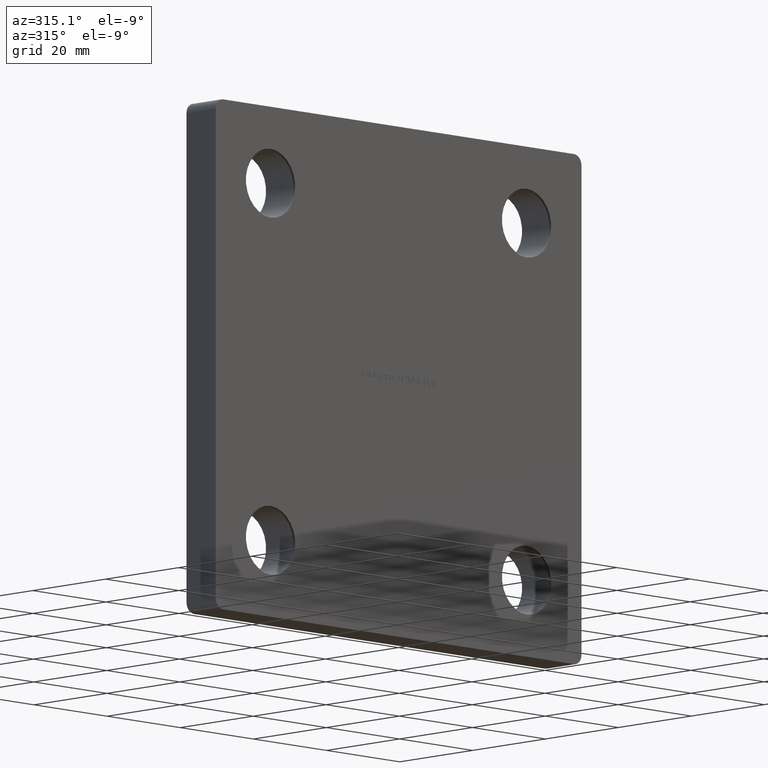
[diagram: clean part render]
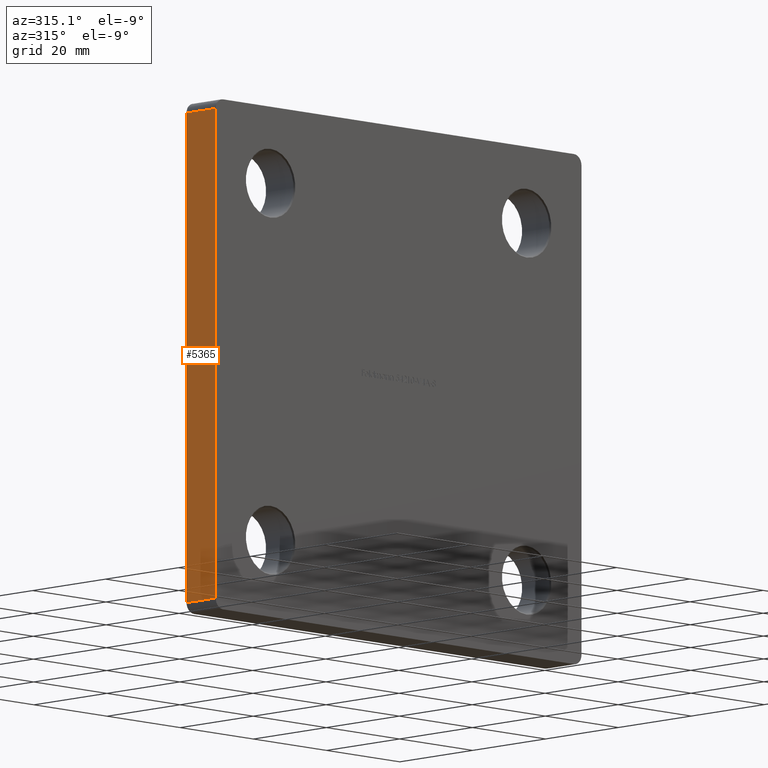
[diagram: same view with one face highlighted and labeled with its STEP entity id]
A machine part, auxiliary view. The second image highlights one B-rep face of the part: STEP entity #5365.
In plain terms, the highlighted planar face has unit normal (1, 0, -0).
Its self-contained STEP definition (entity closure, byte-faithful):
#1205 = ORIENTED_EDGE ( 'NONE', *, *, #4740, .T. ) ;
#1689 = CARTESIAN_POINT ( 'NONE',  ( -50.00000000000000000, 8.000000000000000000, -49.99999999999998579 ) ) ;
#2146 = LINE ( 'NONE', #4055, #11560 ) ;
#2860 = EDGE_CURVE ( 'NONE', #7071, #6628, #2146, .T. ) ;
#3510 = VERTEX_POINT ( 'NONE', #10834 ) ;
#3525 = FACE_OUTER_BOUND ( 'NONE', #11082, .T. ) ;
#3636 = VECTOR ( 'NONE', #10868, 1000.000000000000000 ) ;
#3858 = PLANE ( 'NONE',  #10814 ) ;
#4055 = CARTESIAN_POINT ( 'NONE',  ( -50.00000000000000000, 8.000000000000000000, -47.99999999999998579 ) ) ;
#4648 = VECTOR ( 'NONE', #7481, 1000.000000000000000 ) ;
#4740 = EDGE_CURVE ( 'NONE', #3510, #9297, #9441, .T. ) ;
#4883 = DIRECTION ( 'NONE',  ( 1.000000000000000000, 0.000000000000000000, -1.387778780781445676E-16 ) ) ;
#4923 = VECTOR ( 'NONE', #8732, 1000.000000000000000 ) ;
#5365 = ADVANCED_FACE ( 'NONE', ( #3525 ), #3858, .F. ) ;
#5447 = CARTESIAN_POINT ( 'NONE',  ( -50.00000000000000000, 0.000000000000000000, -47.99999999999998579 ) ) ;
#6156 = CARTESIAN_POINT ( 'NONE',  ( -49.99999999999998579, 8.000000000000000000, 48.00000000000001421 ) ) ;
#6628 = VERTEX_POINT ( 'NONE', #5447 ) ;
#7032 = ORIENTED_EDGE ( 'NONE', *, *, #8712, .T. ) ;
#7071 = VERTEX_POINT ( 'NONE', #11353 ) ;
#7481 = DIRECTION ( 'NONE',  ( -0.000000000000000000, 1.000000000000000000, -0.000000000000000000 ) ) ;
#7629 = LINE ( 'NONE', #7792, #4923 ) ;
#7661 = CARTESIAN_POINT ( 'NONE',  ( -49.99999999999998579, 8.000000000000000000, 48.00000000000001421 ) ) ;
#7792 = CARTESIAN_POINT ( 'NONE',  ( -50.00000000000000000, 0.000000000000000000, -49.99999999999998579 ) ) ;
#7880 = CARTESIAN_POINT ( 'NONE',  ( -50.00000000000000000, 8.000000000000000000, -49.99999999999998579 ) ) ;
#7960 = EDGE_CURVE ( 'NONE', #7071, #9297, #8763, .T. ) ;
#8712 = EDGE_CURVE ( 'NONE', #6628, #3510, #7629, .T. ) ;
#8732 = DIRECTION ( 'NONE',  ( 1.387778780781445676E-16, 0.000000000000000000, 1.000000000000000000 ) ) ;
#8763 = LINE ( 'NONE', #7880, #3636 ) ;
#9297 = VERTEX_POINT ( 'NONE', #6156 ) ;
#9441 = LINE ( 'NONE', #7661, #4648 ) ;
#10144 = ORIENTED_EDGE ( 'NONE', *, *, #7960, .F. ) ;
#10814 = AXIS2_PLACEMENT_3D ( 'NONE', #1689, #4883, #10950 ) ;
#10834 = CARTESIAN_POINT ( 'NONE',  ( -49.99999999999998579, 0.000000000000000000, 48.00000000000001421 ) ) ;
#10868 = DIRECTION ( 'NONE',  ( 1.387778780781445676E-16, 0.000000000000000000, 1.000000000000000000 ) ) ;
#10950 = DIRECTION ( 'NONE',  ( -1.387778780781445676E-16, 0.000000000000000000, -1.000000000000000000 ) ) ;
#11082 = EDGE_LOOP ( 'NONE', ( #10144, #12113, #7032, #1205 ) ) ;
#11191 = DIRECTION ( 'NONE',  ( 0.000000000000000000, -1.000000000000000000, 0.000000000000000000 ) ) ;
#11353 = CARTESIAN_POINT ( 'NONE',  ( -50.00000000000000000, 8.000000000000000000, -47.99999999999998579 ) ) ;
#11560 = VECTOR ( 'NONE', #11191, 1000.000000000000000 ) ;
#12113 = ORIENTED_EDGE ( 'NONE', *, *, #2860, .T. ) ;